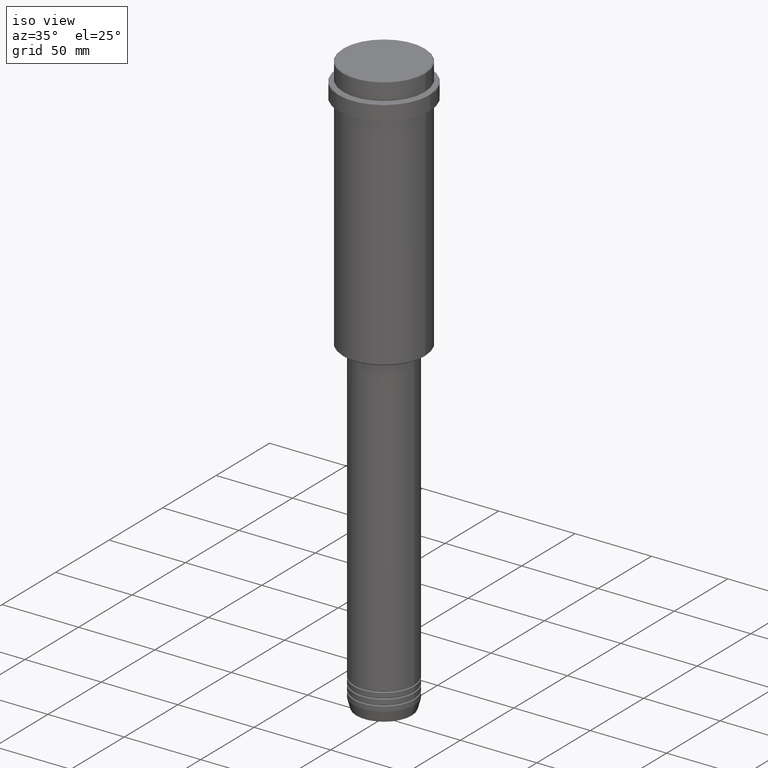
[diagram: clean part render]
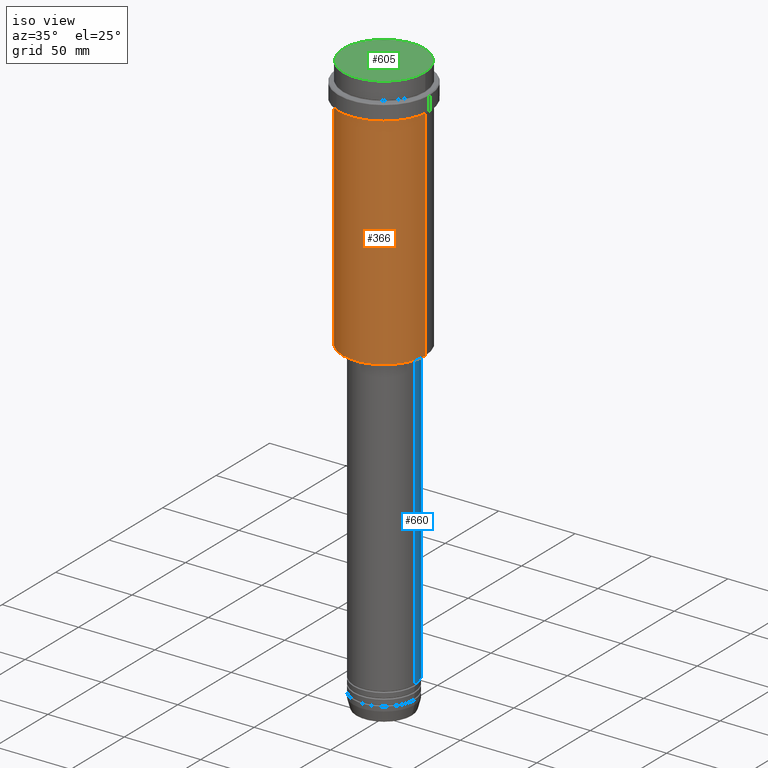
[diagram: same view with three faces highlighted in distinct colors, each labeled with its STEP entity id]
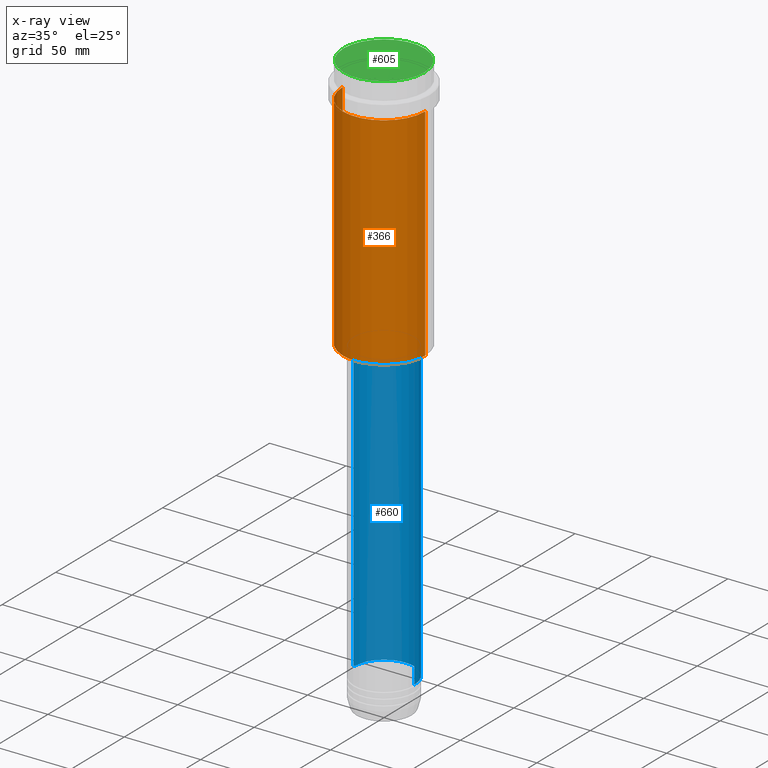
[diagram: x-ray of the same camera — body ghosted, the three highlighted faces saturated]
A machine part, iso view with three faces highlighted in distinct colors.
The next image is the same camera in x-ray (body ghosted, the three faces saturated) — at least one of them is partly hidden behind the body in this view.
Their STEP definitions:

[orange] entity #366 — the highlighted cylindrical surface (partial cylindrical patch) has radius 27 mm, axis along (-0, -0, 1).
#41 = CARTESIAN_POINT ( 'NONE',  ( 0.000000000000000000, 0.000000000000000000, -167.5000000000000853 ) ) ;
#48 = VERTEX_POINT ( 'NONE', #391 ) ;
#66 = ORIENTED_EDGE ( 'NONE', *, *, #1112, .F. ) ;
#78 = CARTESIAN_POINT ( 'NONE',  ( -26.99999999999999645, 3.306546357697853339E-15, -23.00000000000000000 ) ) ;
#89 = AXIS2_PLACEMENT_3D ( 'NONE', #646, #1284, #211 ) ;
#125 = DIRECTION ( 'NONE',  ( -0.000000000000000000, -0.000000000000000000, 1.000000000000000000 ) ) ;
#149 = DIRECTION ( 'NONE',  ( -1.000000000000000000, 0.000000000000000000, 0.000000000000000000 ) ) ;
#202 = CYLINDRICAL_SURFACE ( 'NONE', #620, 26.99999999999999645 ) ;
#211 = DIRECTION ( 'NONE',  ( 1.000000000000000000, 0.000000000000000000, 0.000000000000000000 ) ) ;
#220 = VERTEX_POINT ( 'NONE', #78 ) ;
#239 = CARTESIAN_POINT ( 'NONE',  ( -26.99999999999999645, 3.306546357697853339E-15, 0.000000000000000000 ) ) ;
#339 = CARTESIAN_POINT ( 'NONE',  ( -26.99999999999999645, 3.306546357697853339E-15, -167.5000000000000853 ) ) ;
#366 = ADVANCED_FACE ( 'NONE', ( #884 ), #202, .T. ) ;
#391 = CARTESIAN_POINT ( 'NONE',  ( 26.99999999999999645, 0.000000000000000000, -23.00000000000000000 ) ) ;
#426 = DIRECTION ( 'NONE',  ( 1.000000000000000000, 0.000000000000000000, 0.000000000000000000 ) ) ;
#429 = VERTEX_POINT ( 'NONE', #339 ) ;
#474 = LINE ( 'NONE', #901, #961 ) ;
#485 = CIRCLE ( 'NONE', #895, 26.99999999999999645 ) ;
#494 = ORIENTED_EDGE ( 'NONE', *, *, #1305, .F. ) ;
#588 = DIRECTION ( 'NONE',  ( -0.000000000000000000, -0.000000000000000000, 1.000000000000000000 ) ) ;
#620 = AXIS2_PLACEMENT_3D ( 'NONE', #851, #758, #426 ) ;
#646 = CARTESIAN_POINT ( 'NONE',  ( 0.000000000000000000, 0.000000000000000000, -23.00000000000000000 ) ) ;
#659 = EDGE_LOOP ( 'NONE', ( #66, #839, #1036, #494 ) ) ;
#758 = DIRECTION ( 'NONE',  ( -0.000000000000000000, -0.000000000000000000, 1.000000000000000000 ) ) ;
#839 = ORIENTED_EDGE ( 'NONE', *, *, #1071, .T. ) ;
#851 = CARTESIAN_POINT ( 'NONE',  ( 0.000000000000000000, 0.000000000000000000, 0.000000000000000000 ) ) ;
#872 = VECTOR ( 'NONE', #125, 1000.000000000000000 ) ;
#884 = FACE_OUTER_BOUND ( 'NONE', #659, .T. ) ;
#895 = AXIS2_PLACEMENT_3D ( 'NONE', #41, #588, #149 ) ;
#901 = CARTESIAN_POINT ( 'NONE',  ( 26.99999999999999645, 0.000000000000000000, 0.000000000000000000 ) ) ;
#961 = VECTOR ( 'NONE', #1323, 1000.000000000000000 ) ;
#963 = CIRCLE ( 'NONE', #89, 26.99999999999999645 ) ;
#977 = VERTEX_POINT ( 'NONE', #1214 ) ;
#1036 = ORIENTED_EDGE ( 'NONE', *, *, #1120, .T. ) ;
#1071 = EDGE_CURVE ( 'NONE', #429, #977, #485, .T. ) ;
#1112 = EDGE_CURVE ( 'NONE', #429, #220, #1244, .T. ) ;
#1120 = EDGE_CURVE ( 'NONE', #977, #48, #474, .T. ) ;
#1214 = CARTESIAN_POINT ( 'NONE',  ( 26.99999999999999645, 0.000000000000000000, -167.5000000000000853 ) ) ;
#1244 = LINE ( 'NONE', #239, #872 ) ;
#1284 = DIRECTION ( 'NONE',  ( -0.000000000000000000, -0.000000000000000000, 1.000000000000000000 ) ) ;
#1305 = EDGE_CURVE ( 'NONE', #220, #48, #963, .T. ) ;
#1323 = DIRECTION ( 'NONE',  ( -0.000000000000000000, -0.000000000000000000, 1.000000000000000000 ) ) ;

[blue] entity #660 — the highlighted cylindrical surface (partial cylindrical patch) has radius 20 mm, axis along (-0, -0, 1).
#6 = CYLINDRICAL_SURFACE ( 'NONE', #624, 19.99999999999999645 ) ;
#11 = AXIS2_PLACEMENT_3D ( 'NONE', #466, #22, #906 ) ;
#22 = DIRECTION ( 'NONE',  ( -0.000000000000000000, -0.000000000000000000, 1.000000000000000000 ) ) ;
#122 = VERTEX_POINT ( 'NONE', #929 ) ;
#158 = DIRECTION ( 'NONE',  ( -0.000000000000000000, -0.000000000000000000, 1.000000000000000000 ) ) ;
#163 = CARTESIAN_POINT ( 'NONE',  ( -20.00000000000000000, 2.449293598294706513E-15, -363.9999999999998863 ) ) ;
#182 = VECTOR ( 'NONE', #158, 1000.000000000000000 ) ;
#193 = LINE ( 'NONE', #1197, #1251 ) ;
#243 = CARTESIAN_POINT ( 'NONE',  ( 19.99999999999999645, 0.000000000000000000, 0.000000000000000000 ) ) ;
#257 = EDGE_CURVE ( 'NONE', #1345, #1310, #1249, .T. ) ;
#314 = CARTESIAN_POINT ( 'NONE',  ( -19.99999999999999645, 2.449293598294706119E-15, -169.0000000000000853 ) ) ;
#388 = FACE_OUTER_BOUND ( 'NONE', #855, .T. ) ;
#451 = DIRECTION ( 'NONE',  ( 1.000000000000000000, 0.000000000000000000, 0.000000000000000000 ) ) ;
#466 = CARTESIAN_POINT ( 'NONE',  ( 0.000000000000000000, 0.000000000000000000, -169.0000000000000853 ) ) ;
#475 = EDGE_CURVE ( 'NONE', #1171, #1310, #193, .T. ) ;
#479 = CARTESIAN_POINT ( 'NONE',  ( 0.000000000000000000, 0.000000000000000000, -363.9999999999998863 ) ) ;
#503 = ORIENTED_EDGE ( 'NONE', *, *, #257, .F. ) ;
#580 = CIRCLE ( 'NONE', #917, 20.00000000000000000 ) ;
#624 = AXIS2_PLACEMENT_3D ( 'NONE', #819, #674, #451 ) ;
#660 = ADVANCED_FACE ( 'NONE', ( #388 ), #6, .T. ) ;
#674 = DIRECTION ( 'NONE',  ( -0.000000000000000000, -0.000000000000000000, 1.000000000000000000 ) ) ;
#796 = DIRECTION ( 'NONE',  ( 1.000000000000000000, 0.000000000000000000, 0.000000000000000000 ) ) ;
#819 = CARTESIAN_POINT ( 'NONE',  ( 0.000000000000000000, 0.000000000000000000, 0.000000000000000000 ) ) ;
#840 = ORIENTED_EDGE ( 'NONE', *, *, #1017, .T. ) ;
#855 = EDGE_LOOP ( 'NONE', ( #840, #909, #503, #1161 ) ) ;
#906 = DIRECTION ( 'NONE',  ( 1.000000000000000000, 0.000000000000000000, 0.000000000000000000 ) ) ;
#909 = ORIENTED_EDGE ( 'NONE', *, *, #475, .T. ) ;
#917 = AXIS2_PLACEMENT_3D ( 'NONE', #479, #1016, #796 ) ;
#929 = CARTESIAN_POINT ( 'NONE',  ( 20.00000000000000000, 0.000000000000000000, -363.9999999999998863 ) ) ;
#983 = CARTESIAN_POINT ( 'NONE',  ( 19.99999999999999645, 0.000000000000000000, -169.0000000000000853 ) ) ;
#1013 = EDGE_CURVE ( 'NONE', #122, #1345, #1205, .T. ) ;
#1016 = DIRECTION ( 'NONE',  ( -0.000000000000000000, -0.000000000000000000, 1.000000000000000000 ) ) ;
#1017 = EDGE_CURVE ( 'NONE', #122, #1171, #580, .T. ) ;
#1161 = ORIENTED_EDGE ( 'NONE', *, *, #1013, .F. ) ;
#1171 = VERTEX_POINT ( 'NONE', #163 ) ;
#1197 = CARTESIAN_POINT ( 'NONE',  ( -19.99999999999999645, 2.449293598294706119E-15, 0.000000000000000000 ) ) ;
#1202 = DIRECTION ( 'NONE',  ( -0.000000000000000000, -0.000000000000000000, 1.000000000000000000 ) ) ;
#1205 = LINE ( 'NONE', #243, #182 ) ;
#1249 = CIRCLE ( 'NONE', #11, 19.99999999999999645 ) ;
#1251 = VECTOR ( 'NONE', #1202, 1000.000000000000000 ) ;
#1310 = VERTEX_POINT ( 'NONE', #314 ) ;
#1345 = VERTEX_POINT ( 'NONE', #983 ) ;

[green] entity #605 — the highlighted planar face has unit normal (0, -0, 1).
#16 = EDGE_LOOP ( 'NONE', ( #190, #137 ) ) ;
#46 = VERTEX_POINT ( 'NONE', #384 ) ;
#137 = ORIENTED_EDGE ( 'NONE', *, *, #145, .T. ) ;
#143 = CARTESIAN_POINT ( 'NONE',  ( 26.50000000000002487, 3.275930187719171130E-15, 0.000000000000000000 ) ) ;
#145 = EDGE_CURVE ( 'NONE', #174, #46, #269, .T. ) ;
#155 = DIRECTION ( 'NONE',  ( -0.000000000000000000, -0.000000000000000000, 1.000000000000000000 ) ) ;
#174 = VERTEX_POINT ( 'NONE', #143 ) ;
#190 = ORIENTED_EDGE ( 'NONE', *, *, #214, .T. ) ;
#214 = EDGE_CURVE ( 'NONE', #46, #174, #1228, .T. ) ;
#269 = CIRCLE ( 'NONE', #1121, 26.50000000000002487 ) ;
#280 = PLANE ( 'NONE',  #595 ) ;
#281 = DIRECTION ( 'NONE',  ( 1.000000000000000000, 0.000000000000000000, 0.000000000000000000 ) ) ;
#379 = FACE_OUTER_BOUND ( 'NONE', #16, .T. ) ;
#384 = CARTESIAN_POINT ( 'NONE',  ( -26.50000000000002487, 0.000000000000000000, 0.000000000000000000 ) ) ;
#497 = DIRECTION ( 'NONE',  ( 1.000000000000000000, 0.000000000000000000, 0.000000000000000000 ) ) ;
#567 = CARTESIAN_POINT ( 'NONE',  ( 0.000000000000000000, 0.000000000000000000, 0.000000000000000000 ) ) ;
#595 = AXIS2_PLACEMENT_3D ( 'NONE', #567, #1020, #1417 ) ;
#605 = ADVANCED_FACE ( 'NONE', ( #379 ), #280, .T. ) ;
#694 = CARTESIAN_POINT ( 'NONE',  ( 0.000000000000000000, 0.000000000000000000, 0.000000000000000000 ) ) ;
#955 = AXIS2_PLACEMENT_3D ( 'NONE', #694, #1129, #281 ) ;
#1020 = DIRECTION ( 'NONE',  ( 0.000000000000000000, -0.000000000000000000, 1.000000000000000000 ) ) ;
#1121 = AXIS2_PLACEMENT_3D ( 'NONE', #1338, #155, #497 ) ;
#1129 = DIRECTION ( 'NONE',  ( -0.000000000000000000, -0.000000000000000000, 1.000000000000000000 ) ) ;
#1228 = CIRCLE ( 'NONE', #955, 26.50000000000002487 ) ;
#1338 = CARTESIAN_POINT ( 'NONE',  ( 0.000000000000000000, 0.000000000000000000, 0.000000000000000000 ) ) ;
#1417 = DIRECTION ( 'NONE',  ( 1.000000000000000000, 0.000000000000000000, 0.000000000000000000 ) ) ;